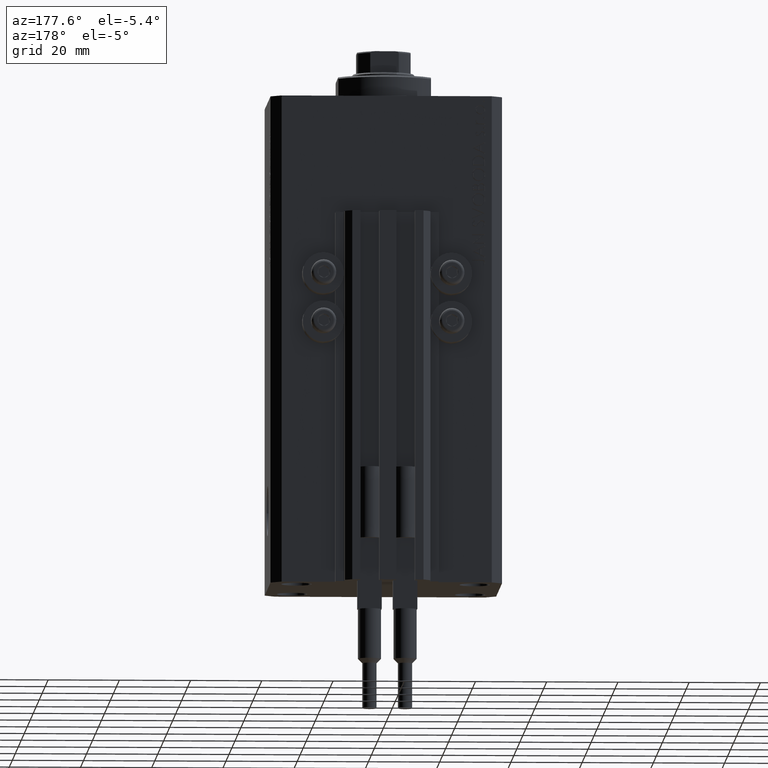
[diagram: clean part render]
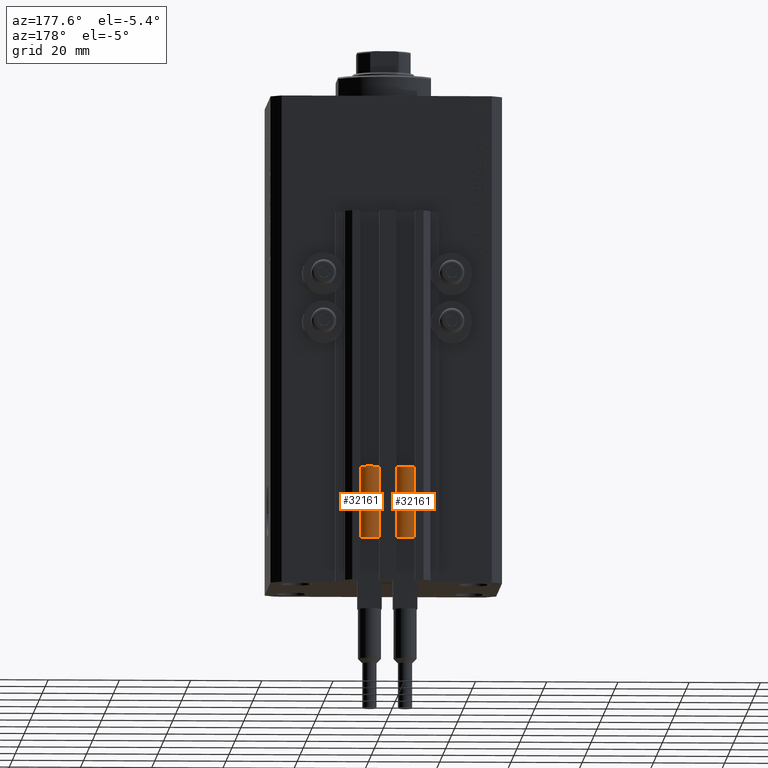
[diagram: same view with one multi-face feature highlighted, each face labeled with its STEP entity id]
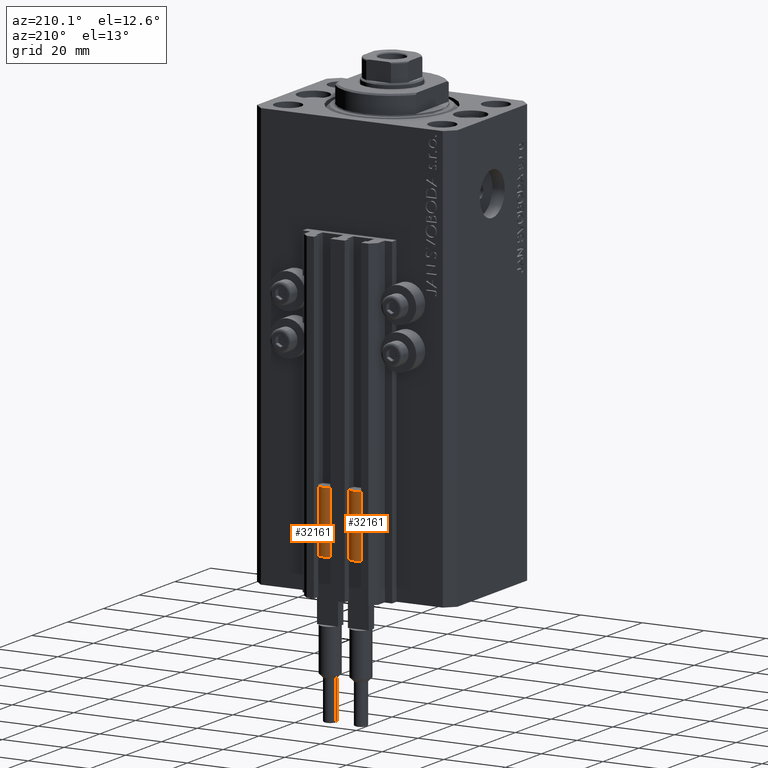
[diagram: same view with one multi-face feature highlighted, each face labeled with its STEP entity id]
A machine part, auxiliary view. The highlighted faces form ONE feature: a constant-radius fillet chain: 2 tangent blend faces with common blend radius 3.4 mm. The faces share edges in the B-rep.
A second angle (auxiliary view) of the same feature is appended — it is thin or edge-on in the first view.
Their STEP definitions:
[1] entity #32161 (Cylinder):
#650 = AXIS2_PLACEMENT_3D ( 'NONE', #21573, #44621, #18404 ) ;
#737 = CARTESIAN_POINT ( 'NONE',  ( 0.000000000000000000, 0.000000000000000000, 20.00000000000000000 ) ) ;
#2590 = DIRECTION ( 'NONE',  ( 0.000000000000000000, 0.000000000000000000, 1.000000000000000000 ) ) ;
#3231 = ORIENTED_EDGE ( 'NONE', *, *, #18373, .F. ) ;
#6868 = LINE ( 'NONE', #18512, #8891 ) ;
#7874 = AXIS2_PLACEMENT_3D ( 'NONE', #27597, #23720, #15957 ) ;
#8784 = ORIENTED_EDGE ( 'NONE', *, *, #33456, .F. ) ;
#8891 = VECTOR ( 'NONE', #47415, 1000.000000000000000 ) ;
#9254 = EDGE_CURVE ( 'NONE', #40584, #46104, #6868, .T. ) ;
#11523 = CARTESIAN_POINT ( 'NONE',  ( 3.400000000000000355, 4.163799117101001052E-16, 0.000000000000000000 ) ) ;
#12487 = ORIENTED_EDGE ( 'NONE', *, *, #23663, .F. ) ;
#12848 = ORIENTED_EDGE ( 'NONE', *, *, #13299, .F. ) ;
#13299 = EDGE_CURVE ( 'NONE', #27376, #25739, #23387, .T. ) ;
#14948 = ORIENTED_EDGE ( 'NONE', *, *, #9254, .T. ) ;
#15123 = VERTEX_POINT ( 'NONE', #11523 ) ;
#15556 = DIRECTION ( 'NONE',  ( 1.000000000000000000, 0.000000000000000000, 0.000000000000000000 ) ) ;
#15957 = DIRECTION ( 'NONE',  ( 1.000000000000000000, 0.000000000000000000, 0.000000000000000000 ) ) ;
#18373 = EDGE_CURVE ( 'NONE', #40584, #27376, #42974, .T. ) ;
#18404 = DIRECTION ( 'NONE',  ( -1.000000000000000000, 0.000000000000000000, 0.000000000000000000 ) ) ;
#18512 = CARTESIAN_POINT ( 'NONE',  ( -3.400000000000000355, 0.000000000000000000, 20.00000000000000000 ) ) ;
#19300 = AXIS2_PLACEMENT_3D ( 'NONE', #37342, #32989, #30062 ) ;
#19814 = EDGE_CURVE ( 'NONE', #46104, #15123, #20523, .T. ) ;
#20069 = CIRCLE ( 'NONE', #19300, 3.400000000000000355 ) ;
#20103 = ORIENTED_EDGE ( 'NONE', *, *, #19814, .T. ) ;
#20523 = CIRCLE ( 'NONE', #40683, 3.400000000000000355 ) ;
#21443 = CARTESIAN_POINT ( 'NONE',  ( 3.051229260478471428, -1.500000000000000000, 20.00000000000000000 ) ) ;
#21523 = CARTESIAN_POINT ( 'NONE',  ( 3.400000000000000355, 4.163799117101001052E-16, 20.00000000000000000 ) ) ;
#21573 = CARTESIAN_POINT ( 'NONE',  ( 0.000000000000000000, 0.000000000000000000, 20.00000000000000000 ) ) ;
#23387 = CIRCLE ( 'NONE', #7874, 3.400000000000000355 ) ;
#23633 = VERTEX_POINT ( 'NONE', #32453 ) ;
#23663 = EDGE_CURVE ( 'NONE', #23633, #15123, #36800, .T. ) ;
#23720 = DIRECTION ( 'NONE',  ( 0.000000000000000000, 0.000000000000000000, 1.000000000000000000 ) ) ;
#25209 = FACE_OUTER_BOUND ( 'NONE', #33738, .T. ) ;
#25739 = VERTEX_POINT ( 'NONE', #21443 ) ;
#26793 = CARTESIAN_POINT ( 'NONE',  ( -3.051229260478471428, -1.500000000000000000, 20.00000000000000000 ) ) ;
#27376 = VERTEX_POINT ( 'NONE', #26793 ) ;
#27597 = CARTESIAN_POINT ( 'NONE',  ( 0.000000000000000000, 0.000000000000000000, 20.00000000000000000 ) ) ;
#30062 = DIRECTION ( 'NONE',  ( 1.000000000000000000, 0.000000000000000000, 0.000000000000000000 ) ) ;
#30606 = VECTOR ( 'NONE', #32695, 1000.000000000000000 ) ;
#32161 = ADVANCED_FACE ( 'NONE', ( #25209 ), #32503, .T. ) ;
#32453 = CARTESIAN_POINT ( 'NONE',  ( 3.400000000000000355, 0.000000000000000000, 20.00000000000000000 ) ) ;
#32503 = CYLINDRICAL_SURFACE ( 'NONE', #650, 3.400000000000000355 ) ;
#32695 = DIRECTION ( 'NONE',  ( -0.000000000000000000, -0.000000000000000000, -1.000000000000000000 ) ) ;
#32989 = DIRECTION ( 'NONE',  ( 0.000000000000000000, 0.000000000000000000, 1.000000000000000000 ) ) ;
#33456 = EDGE_CURVE ( 'NONE', #25739, #23633, #20069, .T. ) ;
#33738 = EDGE_LOOP ( 'NONE', ( #12487, #8784, #12848, #3231, #14948, #20103 ) ) ;
#34474 = AXIS2_PLACEMENT_3D ( 'NONE', #737, #37393, #15556 ) ;
#34902 = CARTESIAN_POINT ( 'NONE',  ( -3.399999999999999467, -4.915049848600952119E-16, 20.00000000000000000 ) ) ;
#35614 = DIRECTION ( 'NONE',  ( 1.000000000000000000, 0.000000000000000000, 0.000000000000000000 ) ) ;
#36800 = LINE ( 'NONE', #21523, #30606 ) ;
#37342 = CARTESIAN_POINT ( 'NONE',  ( 0.000000000000000000, 0.000000000000000000, 20.00000000000000000 ) ) ;
#37393 = DIRECTION ( 'NONE',  ( 0.000000000000000000, 0.000000000000000000, 1.000000000000000000 ) ) ;
#39501 = CARTESIAN_POINT ( 'NONE',  ( 0.000000000000000000, 0.000000000000000000, 0.000000000000000000 ) ) ;
#40584 = VERTEX_POINT ( 'NONE', #34902 ) ;
#40683 = AXIS2_PLACEMENT_3D ( 'NONE', #39501, #2590, #35614 ) ;
#42974 = CIRCLE ( 'NONE', #34474, 3.400000000000000355 ) ;
#43828 = CARTESIAN_POINT ( 'NONE',  ( -3.400000000000000355, 0.000000000000000000, 0.000000000000000000 ) ) ;
#44621 = DIRECTION ( 'NONE',  ( -0.000000000000000000, -0.000000000000000000, -1.000000000000000000 ) ) ;
#46104 = VERTEX_POINT ( 'NONE', #43828 ) ;
#47415 = DIRECTION ( 'NONE',  ( -0.000000000000000000, -0.000000000000000000, -1.000000000000000000 ) ) ;
[2] entity #32161 (Cylinder):
#650 = AXIS2_PLACEMENT_3D ( 'NONE', #21573, #44621, #18404 ) ;
#737 = CARTESIAN_POINT ( 'NONE',  ( 0.000000000000000000, 0.000000000000000000, 20.00000000000000000 ) ) ;
#2590 = DIRECTION ( 'NONE',  ( 0.000000000000000000, 0.000000000000000000, 1.000000000000000000 ) ) ;
#3231 = ORIENTED_EDGE ( 'NONE', *, *, #18373, .F. ) ;
#6868 = LINE ( 'NONE', #18512, #8891 ) ;
#7874 = AXIS2_PLACEMENT_3D ( 'NONE', #27597, #23720, #15957 ) ;
#8784 = ORIENTED_EDGE ( 'NONE', *, *, #33456, .F. ) ;
#8891 = VECTOR ( 'NONE', #47415, 1000.000000000000000 ) ;
#9254 = EDGE_CURVE ( 'NONE', #40584, #46104, #6868, .T. ) ;
#11523 = CARTESIAN_POINT ( 'NONE',  ( 3.400000000000000355, 4.163799117101001052E-16, 0.000000000000000000 ) ) ;
#12487 = ORIENTED_EDGE ( 'NONE', *, *, #23663, .F. ) ;
#12848 = ORIENTED_EDGE ( 'NONE', *, *, #13299, .F. ) ;
#13299 = EDGE_CURVE ( 'NONE', #27376, #25739, #23387, .T. ) ;
#14948 = ORIENTED_EDGE ( 'NONE', *, *, #9254, .T. ) ;
#15123 = VERTEX_POINT ( 'NONE', #11523 ) ;
#15556 = DIRECTION ( 'NONE',  ( 1.000000000000000000, 0.000000000000000000, 0.000000000000000000 ) ) ;
#15957 = DIRECTION ( 'NONE',  ( 1.000000000000000000, 0.000000000000000000, 0.000000000000000000 ) ) ;
#18373 = EDGE_CURVE ( 'NONE', #40584, #27376, #42974, .T. ) ;
#18404 = DIRECTION ( 'NONE',  ( -1.000000000000000000, 0.000000000000000000, 0.000000000000000000 ) ) ;
#18512 = CARTESIAN_POINT ( 'NONE',  ( -3.400000000000000355, 0.000000000000000000, 20.00000000000000000 ) ) ;
#19300 = AXIS2_PLACEMENT_3D ( 'NONE', #37342, #32989, #30062 ) ;
#19814 = EDGE_CURVE ( 'NONE', #46104, #15123, #20523, .T. ) ;
#20069 = CIRCLE ( 'NONE', #19300, 3.400000000000000355 ) ;
#20103 = ORIENTED_EDGE ( 'NONE', *, *, #19814, .T. ) ;
#20523 = CIRCLE ( 'NONE', #40683, 3.400000000000000355 ) ;
#21443 = CARTESIAN_POINT ( 'NONE',  ( 3.051229260478471428, -1.500000000000000000, 20.00000000000000000 ) ) ;
#21523 = CARTESIAN_POINT ( 'NONE',  ( 3.400000000000000355, 4.163799117101001052E-16, 20.00000000000000000 ) ) ;
#21573 = CARTESIAN_POINT ( 'NONE',  ( 0.000000000000000000, 0.000000000000000000, 20.00000000000000000 ) ) ;
#23387 = CIRCLE ( 'NONE', #7874, 3.400000000000000355 ) ;
#23633 = VERTEX_POINT ( 'NONE', #32453 ) ;
#23663 = EDGE_CURVE ( 'NONE', #23633, #15123, #36800, .T. ) ;
#23720 = DIRECTION ( 'NONE',  ( 0.000000000000000000, 0.000000000000000000, 1.000000000000000000 ) ) ;
#25209 = FACE_OUTER_BOUND ( 'NONE', #33738, .T. ) ;
#25739 = VERTEX_POINT ( 'NONE', #21443 ) ;
#26793 = CARTESIAN_POINT ( 'NONE',  ( -3.051229260478471428, -1.500000000000000000, 20.00000000000000000 ) ) ;
#27376 = VERTEX_POINT ( 'NONE', #26793 ) ;
#27597 = CARTESIAN_POINT ( 'NONE',  ( 0.000000000000000000, 0.000000000000000000, 20.00000000000000000 ) ) ;
#30062 = DIRECTION ( 'NONE',  ( 1.000000000000000000, 0.000000000000000000, 0.000000000000000000 ) ) ;
#30606 = VECTOR ( 'NONE', #32695, 1000.000000000000000 ) ;
#32161 = ADVANCED_FACE ( 'NONE', ( #25209 ), #32503, .T. ) ;
#32453 = CARTESIAN_POINT ( 'NONE',  ( 3.400000000000000355, 0.000000000000000000, 20.00000000000000000 ) ) ;
#32503 = CYLINDRICAL_SURFACE ( 'NONE', #650, 3.400000000000000355 ) ;
#32695 = DIRECTION ( 'NONE',  ( -0.000000000000000000, -0.000000000000000000, -1.000000000000000000 ) ) ;
#32989 = DIRECTION ( 'NONE',  ( 0.000000000000000000, 0.000000000000000000, 1.000000000000000000 ) ) ;
#33456 = EDGE_CURVE ( 'NONE', #25739, #23633, #20069, .T. ) ;
#33738 = EDGE_LOOP ( 'NONE', ( #12487, #8784, #12848, #3231, #14948, #20103 ) ) ;
#34474 = AXIS2_PLACEMENT_3D ( 'NONE', #737, #37393, #15556 ) ;
#34902 = CARTESIAN_POINT ( 'NONE',  ( -3.399999999999999467, -4.915049848600952119E-16, 20.00000000000000000 ) ) ;
#35614 = DIRECTION ( 'NONE',  ( 1.000000000000000000, 0.000000000000000000, 0.000000000000000000 ) ) ;
#36800 = LINE ( 'NONE', #21523, #30606 ) ;
#37342 = CARTESIAN_POINT ( 'NONE',  ( 0.000000000000000000, 0.000000000000000000, 20.00000000000000000 ) ) ;
#37393 = DIRECTION ( 'NONE',  ( 0.000000000000000000, 0.000000000000000000, 1.000000000000000000 ) ) ;
#39501 = CARTESIAN_POINT ( 'NONE',  ( 0.000000000000000000, 0.000000000000000000, 0.000000000000000000 ) ) ;
#40584 = VERTEX_POINT ( 'NONE', #34902 ) ;
#40683 = AXIS2_PLACEMENT_3D ( 'NONE', #39501, #2590, #35614 ) ;
#42974 = CIRCLE ( 'NONE', #34474, 3.400000000000000355 ) ;
#43828 = CARTESIAN_POINT ( 'NONE',  ( -3.400000000000000355, 0.000000000000000000, 0.000000000000000000 ) ) ;
#44621 = DIRECTION ( 'NONE',  ( -0.000000000000000000, -0.000000000000000000, -1.000000000000000000 ) ) ;
#46104 = VERTEX_POINT ( 'NONE', #43828 ) ;
#47415 = DIRECTION ( 'NONE',  ( -0.000000000000000000, -0.000000000000000000, -1.000000000000000000 ) ) ;